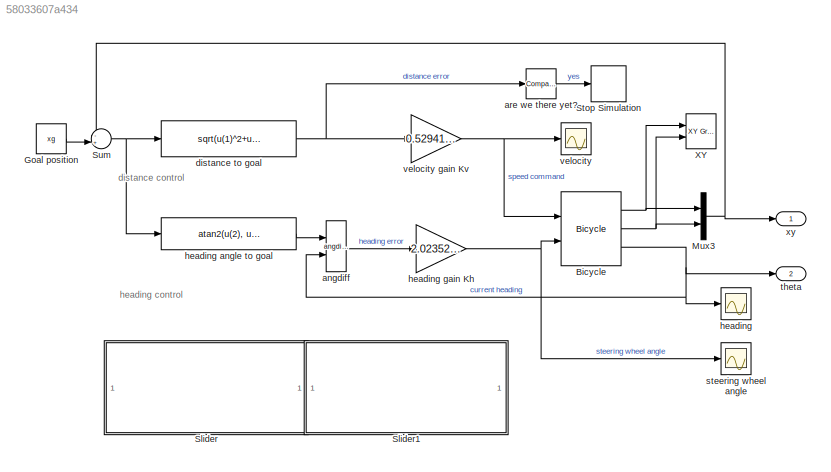
MODEL slx_58033607a434
KIND model
CONFIG AbsTol = auto
CONFIG FixedStep = auto
CONFIG InitFcn = if exist('x0')\n  assert(length(x0)==3, 'x0 must be a 3 vector');\nelse\n  x0 = [5 5 0];\n  msgbox(sprintf('x0 not defined in workspace, setting it to [%g %g %g]\n', x0));\nend\nif exist('xg')\n  assert(length(xg)==2, 'xg must be a 2 vector');\nelse\n  xg = [0 0];\n  msgbox(sprintf('xg not defined in workspace, setting it to [%g %g]\n', xg));\nend\n% clean up old vehicle icons\nset(0, 'ShowHiddenHandles', 'on'...<+81ch>
CONFIG MaxStep = auto
CONFIG MinStep = auto
CONFIG RelTol = 1e-3
CONFIG SampleTimeConstraint = Unconstrained
CONFIG Solver = ode45
CONFIG SolverMode = Auto
CONFIG SolverName = ode45
CONFIG StartTime = 0.0
CONFIG StopFcn = % update the XY scope\nif exist('out')\n % come here if running interactively, the output variable has been\n % saved to the workspace\n  set(0, 'ShowHiddenHandles', 'on')\n  fig = findobj('name', 'XY');\n  ax = findobj(fig, 'type', 'axes');\n  axes(ax);\n  grid on\n  hold on\n  plot_vehicle(x0, 'r', 'Tag', 'vehicle')  \n  plot_vehicle(out.y(end,:), 'b', 'Tag', 'vehicle')\n  hold off\n  set(0, 'ShowHiddenHandl...<+15ch>
CONFIG StopTime = Inf
BLOCK [Reference] Bicycle  REF=roblocks/Vehicles/Bicycle  (lib defined in mdl_2a292b13c81b, mdl_69400f8cfe22, +12 more)
  L = 1
  Ports = [2, 3]
  SourceBlock = roblocks/Vehicles/Bicycle
  accel = 1
  alim = 1
  steer_rate = Inf
  vlim = 1
  x0 = x0
BLOCK [Constant] Goal position
  Value = xg
BLOCK [Mux] Mux3
  DisplayOption = bar
  Inputs = 2
  Ports = [2, 1]
BLOCK [SubSystem] Slider
  Description = Replaced Block
  Ports = []
  RequestExecContextInheritance = off
BLOCK [SubSystem] Slider1
  Description = Replaced Block
  Ports = []
  RequestExecContextInheritance = off
BLOCK [Stop] Stop Simulation
BLOCK [Sum] Sum
  IconShape = round
  InputSameDT = off
  Inputs = -+|
  OutDataTypeStr = Inherit: Inherit via internal rule
  Ports = [2, 1]
  SaturateOnIntegerOverflow = off
BLOCK [Reference] XY  REF=simulink/Sinks/XY Graph
  Ports = [2]
  SourceBlock = simulink/Sinks/XY Graph
  SourceType = XY scope.
  st = -1
  xmax = 6
  xmin = -6
  ymax = 6
  ymin = -6
BLOCK [Reference] angdiff  REF=roblocks/Toolbox/angdiff  (lib defined in mdl_2a292b13c81b, mdl_69400f8cfe22, +12 more)
  Ports = [2, 1]
  SourceBlock = roblocks/Toolbox/angdiff
BLOCK [Reference] are we there yet?  REF=simulink/Logic and Bit
Operations/Compare
To Constant
  OutDataTypeStr = boolean
  Ports = [1, 1]
  SourceBlock = simulink/Logic and Bit\nOperations/Compare\nTo Constant
  SourceType = Compare To Constant
  ZeroCross = on
  const = 0.1
  relop = <
BLOCK [Fcn] distance to goal
  Expr = sqrt(u(1)^2+u(2)^2)
BLOCK [Scope] heading
  DataFormat = StructureWithTime
  Decimation = 1
  Floating = off
  Grid = on
  LimitDataPoints = on
  MaxDataPoints = 5000
  NumInputPorts = 1
  Ports = [1]
  SampleInput = off
  SampleTime = -1
  SaveName = ScopeData2
  SaveToWorkspace = off
  ShowLegends = off
  TickLabels = OneTimeTick
  TimeRange = auto
  YMax = 0.31829
  YMin = -2.86457
  ZoomMode = on
BLOCK [Fcn] heading angle to goal
  Expr = atan2(u(2), u(1))
BLOCK [Gain] heading gain Kh
  Gain = 2.023529411764706
  OutDataTypeStr = Inherit: Inherit via internal rule
  ParamDataTypeStr = Inherit: Inherit via internal rule
  SaturateOnIntegerOverflow = off
BLOCK [Scope] steering wheel angle
  DataFormat = StructureWithTime
  Decimation = 1
  Floating = off
  Grid = on
  LimitDataPoints = on
  MaxDataPoints = 5000
  NumInputPorts = 1
  Ports = [1]
  SampleInput = off
  SampleTime = -1
  SaveName = ScopeData1
  SaveToWorkspace = off
  ShowLegends = off
  TickLabels = OneTimeTick
  TimeRange = auto
  YMax = 0.59595
  YMin = -5.3638
  ZoomMode = on
BLOCK [Outport] theta 
  IconDisplay = Port number
  Port = 2
BLOCK [Scope] velocity
  DataFormat = StructureWithTime
  Decimation = 1
  Floating = off
  Grid = on
  LimitDataPoints = off
  MaxDataPoints = 5000
  NumInputPorts = 1
  Ports = [1]
  SampleInput = off
  SampleTime = -1
  SaveName = ScopeData1
  SaveToWorkspace = off
  ShowLegends = off
  TickLabels = OneTimeTick
  TimeRange = auto
  YMax = 4.32515
  YMin = -0.42175
  ZoomMode = on
BLOCK [Gain] velocity gain Kv
  Gain = 0.5294117647058824
  OutDataTypeStr = Inherit: Inherit via internal rule
  ParamDataTypeStr = Inherit: Inherit via internal rule
  SaturateOnIntegerOverflow = off
BLOCK [Outport] xy
  IconDisplay = Port number
ANNOTATION (root): distance control
ANNOTATION (root): heading control
NET Bicycle:1 -> Mux3:1, XY:1
NET Bicycle:2 -> Mux3:2, XY:2
NET Bicycle:3 -> angdiff:2, heading:1, theta :1
LINE Goal position:1 -> Sum:2
NET Mux3:1 -> Sum:1, xy:1
NET Sum:1 -> distance to goal:1, heading angle to goal:1
LINE angdiff:1 -> heading gain Kh:1
LINE are we there yet?:1 -> Stop Simulation:1
NET distance to goal:1 -> are we there yet?:1, velocity gain Kv:1
LINE heading angle to goal:1 -> angdiff:1
NET heading gain Kh:1 -> Bicycle:2, steering wheel angle:1
NET velocity gain Kv:1 -> Bicycle:1, velocity:1
note: NET lines group one-source signal fan-out (src -> all destinations, sorted); 1:1 wires keep LINE
